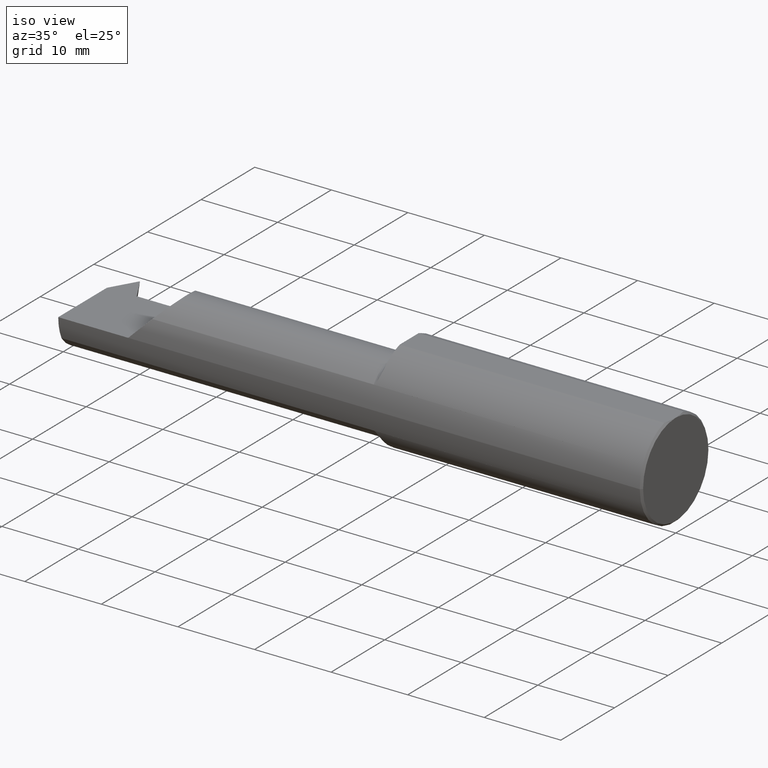
[diagram: clean part render]
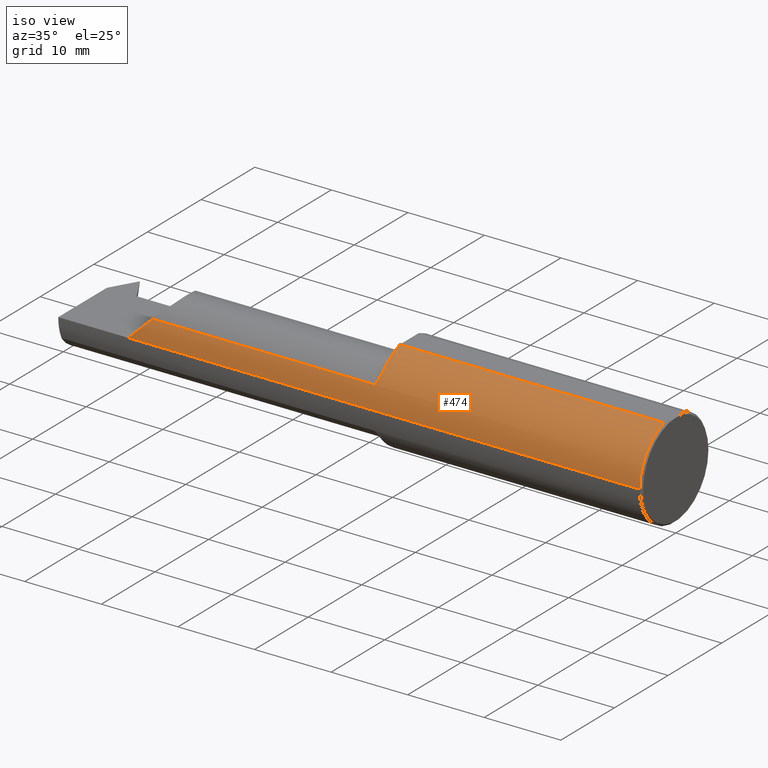
[diagram: same view with one face highlighted and labeled with its STEP entity id]
A machine part, iso view. The second image highlights one B-rep face of the part: STEP entity #474.
In plain terms, the highlighted cylindrical surface (partial cylindrical patch) has radius 6.3462 mm, axis along (1, 0, -0).
Its self-contained STEP definition (entity closure, byte-faithful):
#14 = DIRECTION ( 'NONE',  ( 0.000000000000000000, 1.000000000000000000, 0.000000000000000000 ) ) ;
#21 = VERTEX_POINT ( 'NONE', #646 ) ;
#28 = EDGE_CURVE ( 'NONE', #226, #21, #290, .T. ) ;
#36 = CARTESIAN_POINT ( 'NONE',  ( -1.387753075814180059, -0.2232556704115741253, 0.1121857874001151445 ) ) ;
#39 = CARTESIAN_POINT ( 'NONE',  ( -1.392642439405626709, -0.2255733860777257294, 0.1074346955532789610 ) ) ;
#46 = DIRECTION ( 'NONE',  ( 1.000000000000000000, 1.224646799147351482E-16, -0.000000000000000000 ) ) ;
#54 = ORIENTED_EDGE ( 'NONE', *, *, #367, .F. ) ;
#57 = CARTESIAN_POINT ( 'NONE',  ( -1.370000000000000329, 2.608497682183858774E-16, 0.000000000000000000 ) ) ;
#63 = CARTESIAN_POINT ( 'NONE',  ( -2.118799582771864198, -0.2258019038076136131, 0.1069510296203693839 ) ) ;
#91 = CARTESIAN_POINT ( 'NONE',  ( -1.390717781145548226, -0.2249352693140825865, 0.1087643826525832302 ) ) ;
#99 = CARTESIAN_POINT ( 'NONE',  ( -1.371956565677432849, -0.1873305359565244632, 0.1655982590109640606 ) ) ;
#121 = AXIS2_PLACEMENT_3D ( 'NONE', #723, #548, #14 ) ;
#124 =( BOUNDED_CURVE ( )  B_SPLINE_CURVE ( 3, ( #470, #475, #528, #289 ),
 .UNSPECIFIED., .F., .F. ) 
 B_SPLINE_CURVE_WITH_KNOTS ( ( 4, 4 ),
 ( 4.712388980384689674, 5.154735109466821896 ),
 .UNSPECIFIED. ) 
 CURVE ( )  GEOMETRIC_REPRESENTATION_ITEM ( )  RATIONAL_B_SPLINE_CURVE ( ( 1.000000000000000000, 0.9837605203333756876, 0.9837605203333756876, 1.000000000000000000 ) ) 
 REPRESENTATION_ITEM ( '' )  );
#137 = FACE_OUTER_BOUND ( 'NONE', #319, .T. ) ;
#145 = CARTESIAN_POINT ( 'NONE',  ( -1.386631274780704359, -0.2222865629965309620, 0.1140986214717608638 ) ) ;
#149 = CARTESIAN_POINT ( 'NONE',  ( -1.383611583263218536, -0.2192375443050077477, 0.1199127921006386821 ) ) ;
#152 = CARTESIAN_POINT ( 'NONE',  ( -1.395000000000000240, -0.2258019038076137797, 0.1069510296203694810 ) ) ;
#167 = B_SPLINE_CURVE_WITH_KNOTS ( 'NONE', 3,
 ( #517, #269, #575, #99, #456, #632, #401, #628, #149, #145, #36, #738, #91, #39, #452, #393 ),
 .UNSPECIFIED., .F., .F.,
 ( 4, 2, 2, 2, 2, 2, 2, 4 ),
 ( 0.0007713084167964284884, 0.001497239385829862452, 0.002223170354863296307, 0.002949101323896731464, 0.003312066808413445789, 0.003493549550671799266, 0.003584290921800975787, 0.003675032292930152308 ),
 .UNSPECIFIED. ) ;
#173 = EDGE_CURVE ( 'NONE', #302, #240, #260, .T. ) ;
#190 = CARTESIAN_POINT ( 'NONE',  ( -1.370000000000000329, -0.1598366399459756337, 0.1920345568659278801 ) ) ;
#222 = VECTOR ( 'NONE', #361, 39.37007874015748143 ) ;
#226 = VERTEX_POINT ( 'NONE', #459 ) ;
#232 = CARTESIAN_POINT ( 'NONE',  ( -0.009999999999999620304, 4.274017329024257420E-16, 0.000000000000000000 ) ) ;
#240 = VERTEX_POINT ( 'NONE', #697 ) ;
#244 = CIRCLE ( 'NONE', #485, 0.2498499999999999888 ) ;
#252 = ORIENTED_EDGE ( 'NONE', *, *, #173, .T. ) ;
#260 = LINE ( 'NONE', #63, #643 ) ;
#269 = CARTESIAN_POINT ( 'NONE',  ( -1.369999999999983009, -0.1671615771988863020, 0.1859377721133057826 ) ) ;
#289 = CARTESIAN_POINT ( 'NONE',  ( -2.533048970379630394, -0.2258019038076140295, 0.1069510296203686622 ) ) ;
#290 = LINE ( 'NONE', #349, #483 ) ;
#302 = VERTEX_POINT ( 'NONE', #152 ) ;
#309 = EDGE_CURVE ( 'NONE', #507, #302, #167, .T. ) ;
#316 = ORIENTED_EDGE ( 'NONE', *, *, #28, .T. ) ;
#319 = EDGE_LOOP ( 'NONE', ( #339, #316, #565, #54, #737, #430, #252 ) ) ;
#339 = ORIENTED_EDGE ( 'NONE', *, *, #398, .F. ) ;
#349 = CARTESIAN_POINT ( 'NONE',  ( -3.000000000000000444, -0.2498499999999999333, 3.059780027669661931E-17 ) ) ;
#361 = DIRECTION ( 'NONE',  ( 1.000000000000000000, 1.224646799147351482E-16, -0.000000000000000000 ) ) ;
#367 = EDGE_CURVE ( 'NONE', #386, #542, #761, .T. ) ;
#386 = VERTEX_POINT ( 'NONE', #584 ) ;
#393 = CARTESIAN_POINT ( 'NONE',  ( -1.395000000000000240, -0.2258019038076137797, 0.1069510296203694810 ) ) ;
#398 = EDGE_CURVE ( 'NONE', #226, #240, #124, .T. ) ;
#401 = CARTESIAN_POINT ( 'NONE',  ( -1.378055368518436907, -0.2099128102803901330, 0.1358187170865862992 ) ) ;
#417 = DIRECTION ( 'NONE',  ( 0.000000000000000000, -1.000000000000000000, 0.000000000000000000 ) ) ;
#418 = EDGE_CURVE ( 'NONE', #386, #507, #244, .T. ) ;
#430 = ORIENTED_EDGE ( 'NONE', *, *, #309, .T. ) ;
#452 = CARTESIAN_POINT ( 'NONE',  ( -1.393775935477919337, -0.2258019038086042929, 0.1069510296182780429 ) ) ;
#454 = AXIS2_PLACEMENT_3D ( 'NONE', #232, #468, #707 ) ;
#456 = CARTESIAN_POINT ( 'NONE',  ( -1.373087269985773018, -0.1934276160906273911, 0.1584236205863207014 ) ) ;
#459 = CARTESIAN_POINT ( 'NONE',  ( -2.640000000000000124, -0.2498499999999999610, 0.000000000000000000 ) ) ;
#468 = DIRECTION ( 'NONE',  ( -1.000000000000000000, -1.224646799147374408E-16, 0.000000000000000000 ) ) ;
#470 = CARTESIAN_POINT ( 'NONE',  ( -2.640000000000000124, -0.2498499999999999610, 0.000000000000000000 ) ) ;
#474 = ADVANCED_FACE ( 'NONE', ( #137 ), #660, .T. ) ;
#475 = CARTESIAN_POINT ( 'NONE',  ( -2.602856366925426101, -0.2498499999999998500, 0.03714363307457358571 ) ) ;
#483 = VECTOR ( 'NONE', #46, 39.37007874015748143 ) ;
#485 = AXIS2_PLACEMENT_3D ( 'NONE', #57, #649, #417 ) ;
#507 = VERTEX_POINT ( 'NONE', #190 ) ;
#517 = CARTESIAN_POINT ( 'NONE',  ( -1.370000000000000329, -0.1598366399459756337, 0.1920345568659278801 ) ) ;
#528 = CARTESIAN_POINT ( 'NONE',  ( -2.566617523761940411, -0.2417016428557101360, 0.07338247623805857489 ) ) ;
#542 = VERTEX_POINT ( 'NONE', #672 ) ;
#548 = DIRECTION ( 'NONE',  ( 1.000000000000000000, 1.224646799147351482E-16, -0.000000000000000000 ) ) ;
#565 = ORIENTED_EDGE ( 'NONE', *, *, #727, .T. ) ;
#575 = CARTESIAN_POINT ( 'NONE',  ( -1.370407510365795112, -0.1741966726822928302, 0.1793628509910543956 ) ) ;
#584 = CARTESIAN_POINT ( 'NONE',  ( -1.370000000000000329, -0.06997856814768335654, 0.2398500000000000076 ) ) ;
#628 = CARTESIAN_POINT ( 'NONE',  ( -1.382085498783632405, -0.2169955490819622801, 0.1239323465094240295 ) ) ;
#632 = CARTESIAN_POINT ( 'NONE',  ( -1.376159583778254536, -0.2047174793401302928, 0.1435375904730358254 ) ) ;
#643 = VECTOR ( 'NONE', #733, 39.37007874015748143 ) ;
#646 = CARTESIAN_POINT ( 'NONE',  ( -0.009999999999999590813, -0.2498499999999995447, 3.059780027669661931E-17 ) ) ;
#649 = DIRECTION ( 'NONE',  ( 1.000000000000000000, -9.422009876951564852E-18, 0.000000000000000000 ) ) ;
#660 = CYLINDRICAL_SURFACE ( 'NONE', #121, 0.2498499999999999888 ) ;
#672 = CARTESIAN_POINT ( 'NONE',  ( -0.009999999999999620304, -0.06997856814768317613, 0.2398500000000000076 ) ) ;
#697 = CARTESIAN_POINT ( 'NONE',  ( -2.533048970379630394, -0.2258019038076140295, 0.1069510296203686622 ) ) ;
#707 = DIRECTION ( 'NONE',  ( -1.195901037850825602E-16, 1.000000000000000000, 0.000000000000000000 ) ) ;
#723 = CARTESIAN_POINT ( 'NONE',  ( -3.000000000000000444, 6.123233995736759873E-17, 0.000000000000000000 ) ) ;
#727 = EDGE_CURVE ( 'NONE', #21, #542, #769, .T. ) ;
#733 = DIRECTION ( 'NONE',  ( -1.000000000000000000, 9.422009876951564852E-18, -0.000000000000000000 ) ) ;
#737 = ORIENTED_EDGE ( 'NONE', *, *, #418, .T. ) ;
#738 = CARTESIAN_POINT ( 'NONE',  ( -1.389912704619950201, -0.2245351419255108283, 0.1095897952907434192 ) ) ;
#755 = CARTESIAN_POINT ( 'NONE',  ( -3.000000000000000444, -0.06997856814768355083, 0.2398500000000000076 ) ) ;
#761 = LINE ( 'NONE', #755, #222 ) ;
#769 = CIRCLE ( 'NONE', #454, 0.2498499999999999888 ) ;